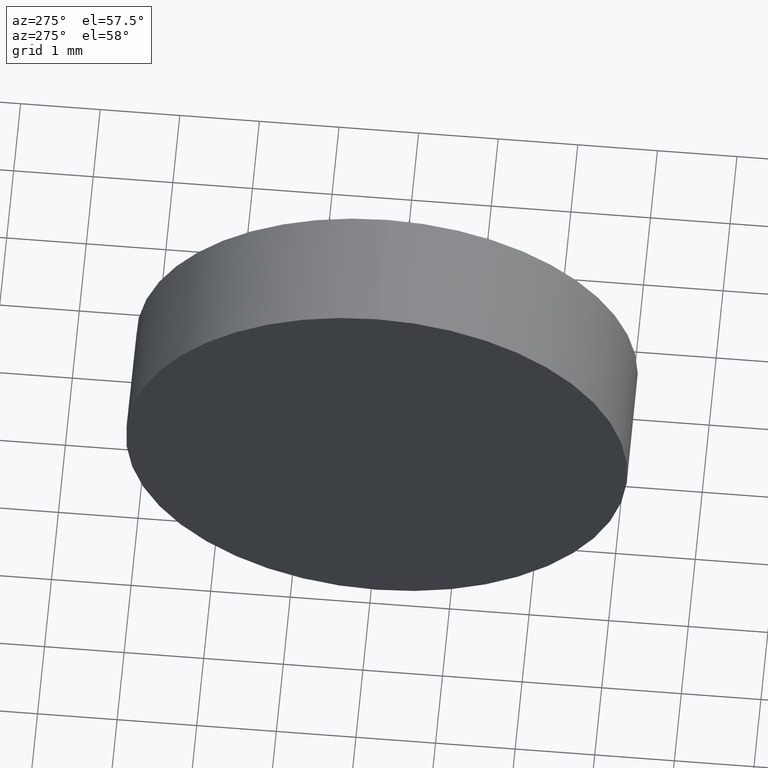
[diagram: clean part render]
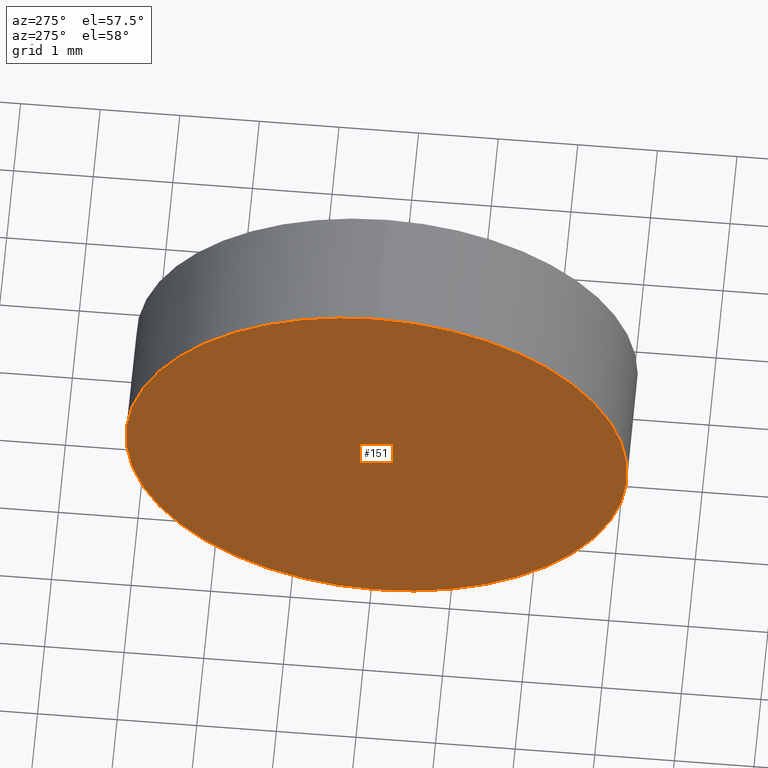
[diagram: same view with one face highlighted and labeled with its STEP entity id]
A machine part, auxiliary view. The second image highlights one B-rep face of the part: STEP entity #151.
In plain terms, the highlighted planar face has unit normal (1, 0, 0).
Its self-contained STEP definition (entity closure, byte-faithful):
#1 = CARTESIAN_POINT ( 'NONE',  ( 515.1162757161529300, 138.9246211176667300, -3.149999999999986100 ) ) ;
#2 = CARTESIAN_POINT ( 'NONE',  ( 515.1162757161529300, 138.9246211176667300, 0.0000000000000000000 ) ) ;
#13 = AXIS2_PLACEMENT_3D ( 'NONE', #44, #142, #104 ) ;
#17 = PLANE ( 'NONE',  #61 ) ;
#27 = VERTEX_POINT ( 'NONE', #183 ) ;
#34 = DIRECTION ( 'NONE',  ( 0.0000000000000000000, 0.0000000000000000000, -1.000000000000000000 ) ) ;
#44 = CARTESIAN_POINT ( 'NONE',  ( 515.1162757161529300, 138.9246211176667300, 0.0000000000000000000 ) ) ;
#48 = AXIS2_PLACEMENT_3D ( 'NONE', #2, #158, #49 ) ;
#49 = DIRECTION ( 'NONE',  ( 0.0000000000000000000, 0.0000000000000000000, 1.000000000000000000 ) ) ;
#61 = AXIS2_PLACEMENT_3D ( 'NONE', #88, #67, #34 ) ;
#67 = DIRECTION ( 'NONE',  ( 1.000000000000000000, 0.0000000000000000000, 0.0000000000000000000 ) ) ;
#88 = CARTESIAN_POINT ( 'NONE',  ( 515.1162757161529300, 138.9246211176667000, 0.0000000000000000000 ) ) ;
#93 = ORIENTED_EDGE ( 'NONE', *, *, #148, .T. ) ;
#95 = VERTEX_POINT ( 'NONE', #1 ) ;
#104 = DIRECTION ( 'NONE',  ( 0.0000000000000000000, 0.0000000000000000000, 1.000000000000000000 ) ) ;
#107 = ORIENTED_EDGE ( 'NONE', *, *, #137, .T. ) ;
#137 = EDGE_CURVE ( 'NONE', #27, #95, #173, .T. ) ;
#142 = DIRECTION ( 'NONE',  ( -1.000000000000000000, -0.0000000000000000000, -0.0000000000000000000 ) ) ;
#148 = EDGE_CURVE ( 'NONE', #95, #27, #164, .T. ) ;
#151 = ADVANCED_FACE ( 'NONE', ( #159 ), #17, .F. ) ;
#158 = DIRECTION ( 'NONE',  ( -1.000000000000000000, -0.0000000000000000000, -0.0000000000000000000 ) ) ;
#159 = FACE_OUTER_BOUND ( 'NONE', #166, .T. ) ;
#164 = CIRCLE ( 'NONE', #13, 3.149999999999986100 ) ;
#166 = EDGE_LOOP ( 'NONE', ( #107, #93 ) ) ;
#173 = CIRCLE ( 'NONE', #48, 3.149999999999986100 ) ;
#183 = CARTESIAN_POINT ( 'NONE',  ( 515.1162757161529300, 138.9246211176667300, 3.149999999999986100 ) ) ;